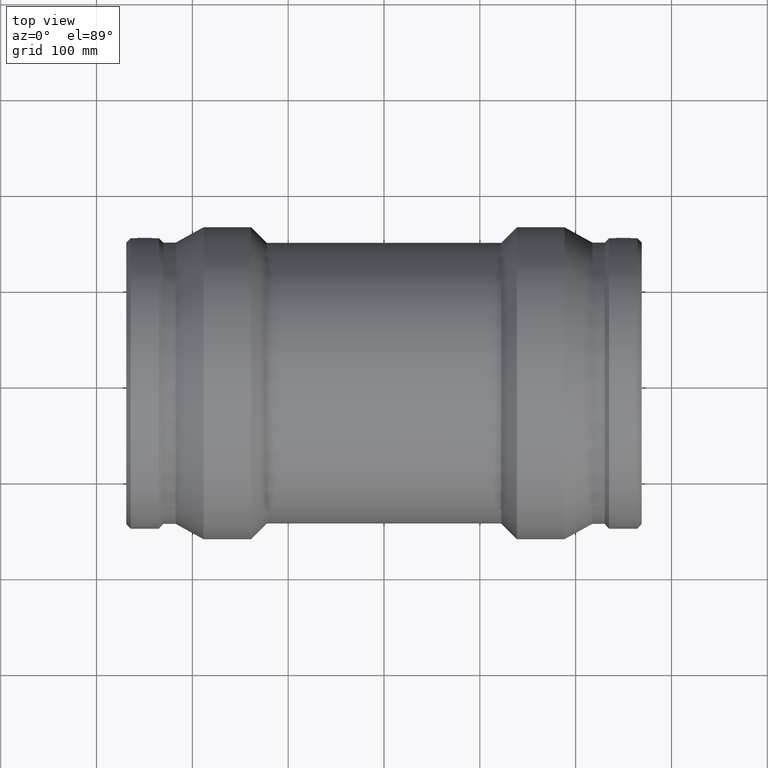
[diagram: clean part render]
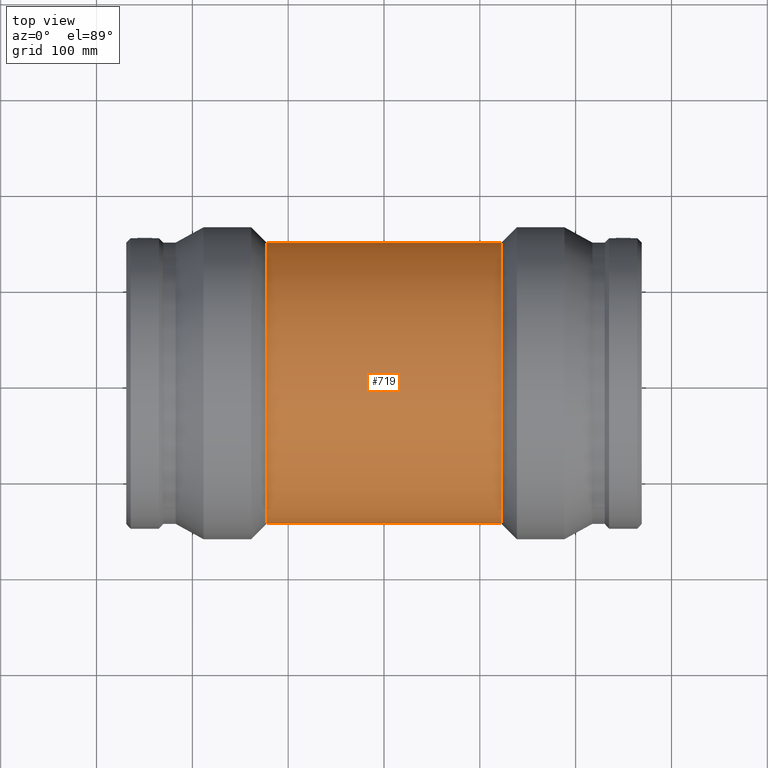
[diagram: same view with one face highlighted and labeled with its STEP entity id]
A machine part, top view. The second image highlights one B-rep face of the part: STEP entity #719.
In plain terms, the highlighted cylindrical surface (bore or boss wall) has radius 146.7 mm, axis along (1, 0, 0).
Its self-contained STEP definition (entity closure, byte-faithful):
#79=FACE_BOUND('',#331,.T.);
#80=FACE_BOUND('',#332,.T.);
#147=CIRCLE('',#807,146.7);
#148=CIRCLE('',#808,146.7);
#199=CYLINDRICAL_SURFACE('',#806,146.7);
#235=FACE_OUTER_BOUND('',#330,.T.);
#330=EDGE_LOOP('',(#616));
#331=EDGE_LOOP('',(#617));
#332=EDGE_LOOP('',(#618));
#416=B_SPLINE_CURVE_WITH_KNOTS('',3,(#1449,#1450,#1451,#1452,#1453,#1454,
#1455,#1456,#1457,#1458,#1459,#1460,#1461,#1462,#1463,#1464,#1465,#1466,
#1467,#1468,#1469,#1470,#1471,#1472,#1473,#1474,#1475,#1476,#1477,#1478,
#1479,#1480,#1481,#1482,#1483,#1484,#1485,#1486,#1487,#1488,#1489,#1490,
#1491,#1492,#1493,#1494,#1495,#1496,#1497,#1498,#1499,#1500,#1501,#1502,
#1503,#1504,#1505,#1506,#1507,#1508,#1509,#1510,#1511,#1512,#1513,#1514),
 .UNSPECIFIED.,.T.,.F.,(4,2,2,2,2,2,2,2,2,2,2,2,2,2,2,2,2,2,2,2,2,2,2,2,
2,2,2,2,2,2,2,2,4),(0.,0.950249367278912,1.90049873455782,2.85074810183674,
3.80099746911565,4.75076261386131,5.70052775860698,6.65029290335265,7.60005804809832,
8.54982319284398,9.49958833758965,10.4493534823353,11.399118627081,12.3493679943599,
13.2996173616388,14.2498667289177,15.2001160961966,16.1503654634755,17.1006148307545,
18.0508641980334,19.0011135653123,19.950878710058,20.9006438548036,21.8504089995493,
22.8001741442949,23.7499392890406,24.6997044337863,25.6494695785319,26.5992347232776,
27.5494840905565,28.4997334578354,29.4499828251144,30.4002321923933),
 .UNSPECIFIED.);
#439=VERTEX_POINT('',#1448);
#448=VERTEX_POINT('',#1541);
#449=VERTEX_POINT('',#1543);
#509=EDGE_CURVE('',#439,#439,#416,.T.);
#518=EDGE_CURVE('',#448,#448,#147,.T.);
#519=EDGE_CURVE('',#449,#449,#148,.T.);
#616=ORIENTED_EDGE('',*,*,#518,.F.);
#617=ORIENTED_EDGE('',*,*,#519,.T.);
#618=ORIENTED_EDGE('',*,*,#509,.T.);
#719=ADVANCED_FACE('',(#235,#79,#80),#199,.T.);
#806=AXIS2_PLACEMENT_3D('',#1540,#977,#978);
#807=AXIS2_PLACEMENT_3D('',#1542,#979,#980);
#808=AXIS2_PLACEMENT_3D('',#1544,#981,#982);
#977=DIRECTION('center_axis',(1.,0.,0.));
#978=DIRECTION('ref_axis',(0.,1.,0.));
#979=DIRECTION('center_axis',(1.,0.,0.));
#980=DIRECTION('ref_axis',(0.,0.,-1.));
#981=DIRECTION('center_axis',(1.,0.,0.));
#982=DIRECTION('ref_axis',(0.,0.,-1.));
#1448=CARTESIAN_POINT('',(-1.72084568816899E-14,50.,-137.916242698241));
#1449=CARTESIAN_POINT('Ctrl Pts',(-1.72084568816899E-14,50.,-137.916242698241));
#1450=CARTESIAN_POINT('Ctrl Pts',(-3.16749789092972,50.,-137.916242698241));
#1451=CARTESIAN_POINT('Ctrl Pts',(-6.43414198247278,49.6941678395785,-138.028401052533));
#1452=CARTESIAN_POINT('Ctrl Pts',(-12.9149140782122,48.4160458466655,-138.481898883002));
#1453=CARTESIAN_POINT('Ctrl Pts',(-16.1291485715823,47.4441297127967,-138.822769575625));
#1454=CARTESIAN_POINT('Ctrl Pts',(-22.2799830821232,44.8853813094623,-139.671074870523));
#1455=CARTESIAN_POINT('Ctrl Pts',(-25.2219667108517,43.2965195973411,-140.178260696358));
#1456=CARTESIAN_POINT('Ctrl Pts',(-30.656640116412,39.6346645196368,-141.25730688698));
#1457=CARTESIAN_POINT('Ctrl Pts',(-33.149329915056,37.5613482035987,-141.828070873408));
#1458=CARTESIAN_POINT('Ctrl Pts',(-37.5602240783186,33.1504540403362,-142.923401510417));
#1459=CARTESIAN_POINT('Ctrl Pts',(-39.6334042467672,30.6582971895144,-143.487356633538));
#1460=CARTESIAN_POINT('Ctrl Pts',(-43.2957476635637,25.2233255807064,-144.541815910784));
#1461=CARTESIAN_POINT('Ctrl Pts',(-44.8851844009752,22.2805100865735,-145.0313661561));
#1462=CARTESIAN_POINT('Ctrl Pts',(-47.4445788889018,16.1280151498282,-145.843770610803));
#1463=CARTESIAN_POINT('Ctrl Pts',(-48.4165693365872,12.9129769598322,-146.166657573168));
#1464=CARTESIAN_POINT('Ctrl Pts',(-49.6944575626406,6.4319552131949,-146.594906842691));
#1465=CARTESIAN_POINT('Ctrl Pts',(-50.,3.16588381581889,-146.7));
#1466=CARTESIAN_POINT('Ctrl Pts',(-50.,-3.16588381581889,-146.7));
#1467=CARTESIAN_POINT('Ctrl Pts',(-49.6944575626406,-6.4319552131949,-146.594906842691));
#1468=CARTESIAN_POINT('Ctrl Pts',(-48.4165693365872,-12.9129769598322,-146.166657573168));
#1469=CARTESIAN_POINT('Ctrl Pts',(-47.4445788889018,-16.1280151498282,-145.843770610803));
#1470=CARTESIAN_POINT('Ctrl Pts',(-44.8851844009752,-22.2805100865735,-145.0313661561));
#1471=CARTESIAN_POINT('Ctrl Pts',(-43.2957476635637,-25.2233255807064,-144.541815910784));
#1472=CARTESIAN_POINT('Ctrl Pts',(-39.6334042467672,-30.6582971895144,-143.487356633538));
#1473=CARTESIAN_POINT('Ctrl Pts',(-37.5602240783186,-33.1504540403362,-142.923401510417));
#1474=CARTESIAN_POINT('Ctrl Pts',(-33.149329915056,-37.5613482035987,-141.828070873408));
#1475=CARTESIAN_POINT('Ctrl Pts',(-30.656640116412,-39.6346645196368,-141.25730688698));
#1476=CARTESIAN_POINT('Ctrl Pts',(-25.2219667108517,-43.2965195973411,-140.178260696358));
#1477=CARTESIAN_POINT('Ctrl Pts',(-22.2799830821232,-44.8853813094622,-139.671074870523));
#1478=CARTESIAN_POINT('Ctrl Pts',(-16.1291485715823,-47.4441297127967,-138.822769575625));
#1479=CARTESIAN_POINT('Ctrl Pts',(-12.9149140782122,-48.4160458466655,-138.481898883002));
#1480=CARTESIAN_POINT('Ctrl Pts',(-6.43414198247277,-49.6941678395785,-138.028401052533));
#1481=CARTESIAN_POINT('Ctrl Pts',(-3.16749789092972,-50.,-137.916242698241));
#1482=CARTESIAN_POINT('Ctrl Pts',(3.16749789092969,-50.,-137.916242698241));
#1483=CARTESIAN_POINT('Ctrl Pts',(6.43414198247273,-49.6941678395785,-138.028401052533));
#1484=CARTESIAN_POINT('Ctrl Pts',(12.9149140782122,-48.4160458466655,-138.481898883002));
#1485=CARTESIAN_POINT('Ctrl Pts',(16.1291485715823,-47.4441297127967,-138.822769575625));
#1486=CARTESIAN_POINT('Ctrl Pts',(22.2799830821231,-44.8853813094623,-139.671074870523));
#1487=CARTESIAN_POINT('Ctrl Pts',(25.2219667108517,-43.2965195973411,-140.178260696358));
#1488=CARTESIAN_POINT('Ctrl Pts',(30.6566401164119,-39.6346645196368,-141.25730688698));
#1489=CARTESIAN_POINT('Ctrl Pts',(33.149329915056,-37.5613482035987,-141.828070873408));
#1490=CARTESIAN_POINT('Ctrl Pts',(37.5602240783186,-33.1504540403362,-142.923401510417));
#1491=CARTESIAN_POINT('Ctrl Pts',(39.6334042467672,-30.6582971895144,-143.487356633538));
#1492=CARTESIAN_POINT('Ctrl Pts',(43.2957476635637,-25.2233255807064,-144.541815910784));
#1493=CARTESIAN_POINT('Ctrl Pts',(44.8851844009752,-22.2805100865735,-145.0313661561));
#1494=CARTESIAN_POINT('Ctrl Pts',(47.4445788889018,-16.1280151498282,-145.843770610803));
#1495=CARTESIAN_POINT('Ctrl Pts',(48.4165693365871,-12.9129769598323,-146.166657573168));
#1496=CARTESIAN_POINT('Ctrl Pts',(49.6944575626405,-6.43195521319492,-146.594906842691));
#1497=CARTESIAN_POINT('Ctrl Pts',(50.,-3.1658838158189,-146.7));
#1498=CARTESIAN_POINT('Ctrl Pts',(50.,3.16588381581889,-146.7));
#1499=CARTESIAN_POINT('Ctrl Pts',(49.6944575626405,6.43195521319491,-146.594906842691));
#1500=CARTESIAN_POINT('Ctrl Pts',(48.4165693365871,12.9129769598323,-146.166657573168));
#1501=CARTESIAN_POINT('Ctrl Pts',(47.4445788889018,16.1280151498282,-145.843770610803));
#1502=CARTESIAN_POINT('Ctrl Pts',(44.8851844009752,22.2805100865735,-145.0313661561));
#1503=CARTESIAN_POINT('Ctrl Pts',(43.2957476635637,25.2233255807064,-144.541815910784));
#1504=CARTESIAN_POINT('Ctrl Pts',(39.6334042467672,30.6582971895144,-143.487356633538));
#1505=CARTESIAN_POINT('Ctrl Pts',(37.5602240783186,33.1504540403362,-142.923401510417));
#1506=CARTESIAN_POINT('Ctrl Pts',(33.149329915056,37.5613482035987,-141.828070873408));
#1507=CARTESIAN_POINT('Ctrl Pts',(30.656640116412,39.6346645196368,-141.25730688698));
#1508=CARTESIAN_POINT('Ctrl Pts',(25.2219667108517,43.2965195973411,-140.178260696358));
#1509=CARTESIAN_POINT('Ctrl Pts',(22.2799830821232,44.8853813094622,-139.671074870523));
#1510=CARTESIAN_POINT('Ctrl Pts',(16.1291485715823,47.4441297127967,-138.822769575625));
#1511=CARTESIAN_POINT('Ctrl Pts',(12.9149140782122,48.4160458466655,-138.481898883002));
#1512=CARTESIAN_POINT('Ctrl Pts',(6.43414198247273,49.6941678395785,-138.028401052533));
#1513=CARTESIAN_POINT('Ctrl Pts',(3.16749789092969,50.,-137.916242698241));
#1514=CARTESIAN_POINT('Ctrl Pts',(-1.72084568816899E-14,50.,-137.916242698241));
#1540=CARTESIAN_POINT('Origin',(0.,0.,0.));
#1541=CARTESIAN_POINT('',(122.395,146.7,0.));
#1542=CARTESIAN_POINT('Origin',(122.395,0.,0.));
#1543=CARTESIAN_POINT('',(-122.395,146.7,0.));
#1544=CARTESIAN_POINT('Origin',(-122.395,0.,0.));